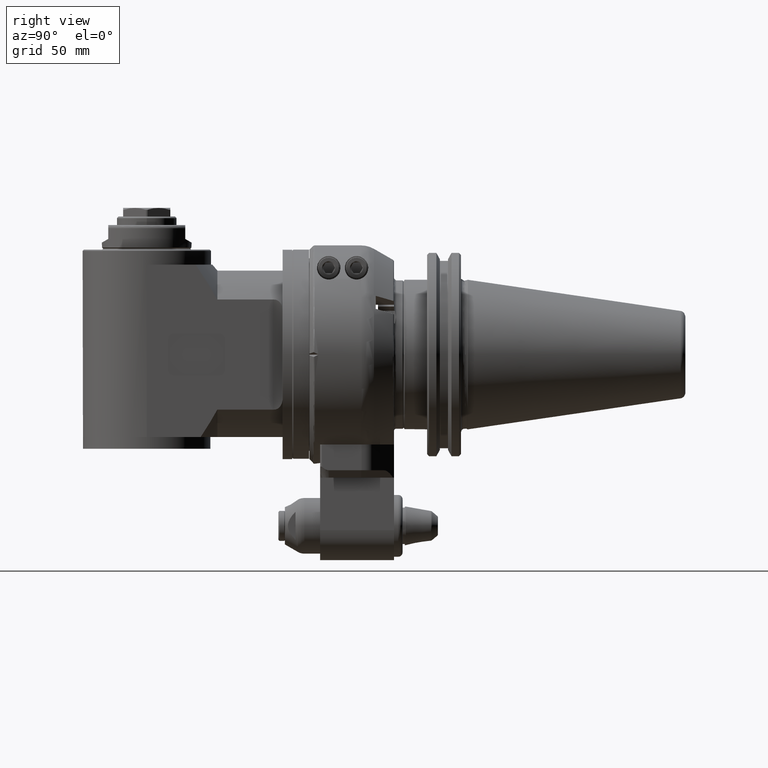
[diagram: clean part render]
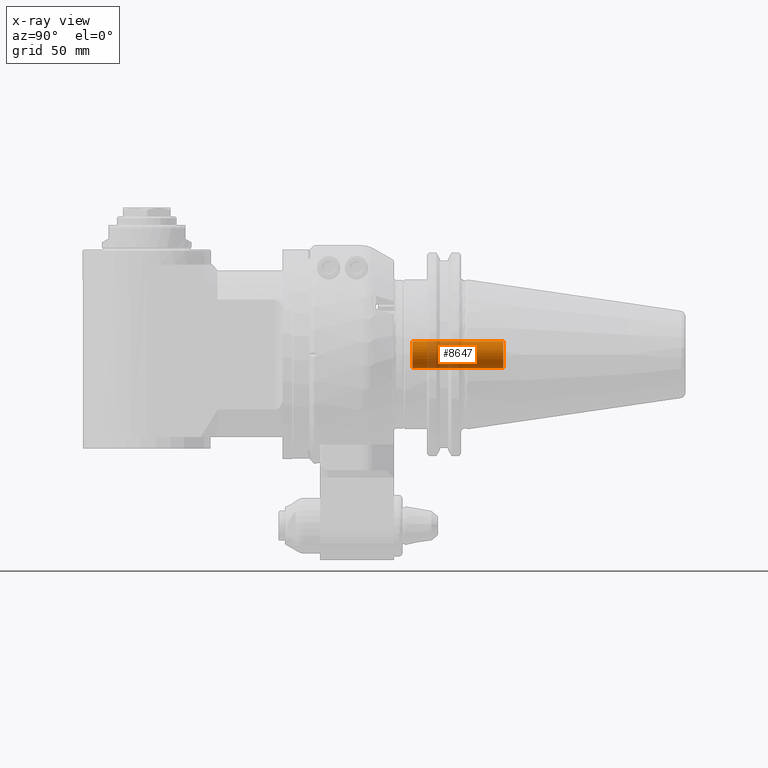
[diagram: x-ray — body ghosted, one internal face saturated and labeled with its STEP entity id]
A machine part, right view, then the same camera in x-ray: the body is ghosted and one INTERNAL B-rep face — a face not visible from any outside direction — is saturated and labeled: STEP entity #8647.
In plain terms, the highlighted cylindrical surface (bore or boss wall) has radius 6.25 mm, axis along (0, 1, 0).
Its self-contained STEP definition (entity closure, byte-faithful):
#655=LINE('',#16395,#1273);
#1273=VECTOR('',#11582,6.25);
#1615=CYLINDRICAL_SURFACE('',#9545,6.25);
#2309=FACE_OUTER_BOUND('',#2876,.T.);
#2876=EDGE_LOOP('',(#7268,#7269,#7270,#7271,#7272));
#3425=CIRCLE('',#9544,6.25);
#3426=CIRCLE('',#9546,6.25);
#3427=CIRCLE('',#9547,6.25);
#4113=VERTEX_POINT('',#16388);
#4114=VERTEX_POINT('',#16391);
#4115=VERTEX_POINT('',#16392);
#5218=EDGE_CURVE('',#4113,#4113,#3425,.T.);
#5219=EDGE_CURVE('',#4114,#4115,#3426,.T.);
#5220=EDGE_CURVE('',#4115,#4114,#3427,.T.);
#5221=EDGE_CURVE('',#4115,#4113,#655,.T.);
#7268=ORIENTED_EDGE('',*,*,#5219,.F.);
#7269=ORIENTED_EDGE('',*,*,#5220,.F.);
#7270=ORIENTED_EDGE('',*,*,#5221,.T.);
#7271=ORIENTED_EDGE('',*,*,#5218,.F.);
#7272=ORIENTED_EDGE('',*,*,#5221,.F.);
#8647=ADVANCED_FACE('',(#2309),#1615,.F.);
#9544=AXIS2_PLACEMENT_3D('',#16389,#11574,#11575);
#9545=AXIS2_PLACEMENT_3D('',#16390,#11576,#11577);
#9546=AXIS2_PLACEMENT_3D('',#16393,#11578,#11579);
#9547=AXIS2_PLACEMENT_3D('',#16394,#11580,#11581);
#11574=DIRECTION('center_axis',(0.,-1.,0.));
#11575=DIRECTION('ref_axis',(0.,0.,1.));
#11576=DIRECTION('center_axis',(0.,1.,0.));
#11577=DIRECTION('ref_axis',(0.,0.,1.));
#11578=DIRECTION('center_axis',(0.,1.,0.));
#11579=DIRECTION('ref_axis',(1.,0.,0.));
#11580=DIRECTION('center_axis',(0.,1.,0.));
#11581=DIRECTION('ref_axis',(1.,0.,0.));
#11582=DIRECTION('',(0.,1.,0.));
#16388=CARTESIAN_POINT('',(0.,90.6,-6.25));
#16389=CARTESIAN_POINT('Origin',(0.,90.6,0.));
#16390=CARTESIAN_POINT('Origin',(0.,95.6,0.));
#16391=CARTESIAN_POINT('',(-6.25,48.,-7.65404249467096E-16));
#16392=CARTESIAN_POINT('',(-7.65404249467096E-16,48.,-6.25));
#16393=CARTESIAN_POINT('Origin',(0.,48.,0.));
#16394=CARTESIAN_POINT('Origin',(0.,48.,0.));
#16395=CARTESIAN_POINT('',(-7.65404249467096E-16,95.6,-6.25));